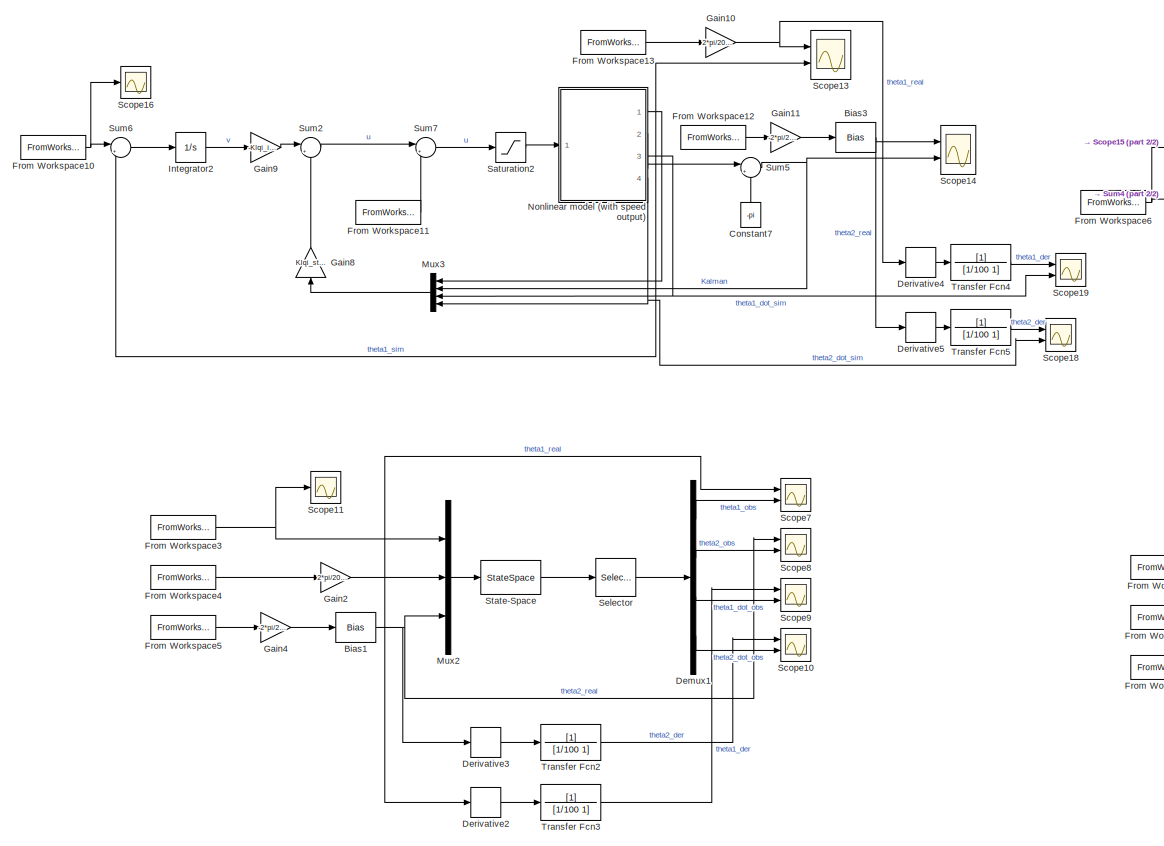
[diagram: root canvas - part 1/2, left side, full height]
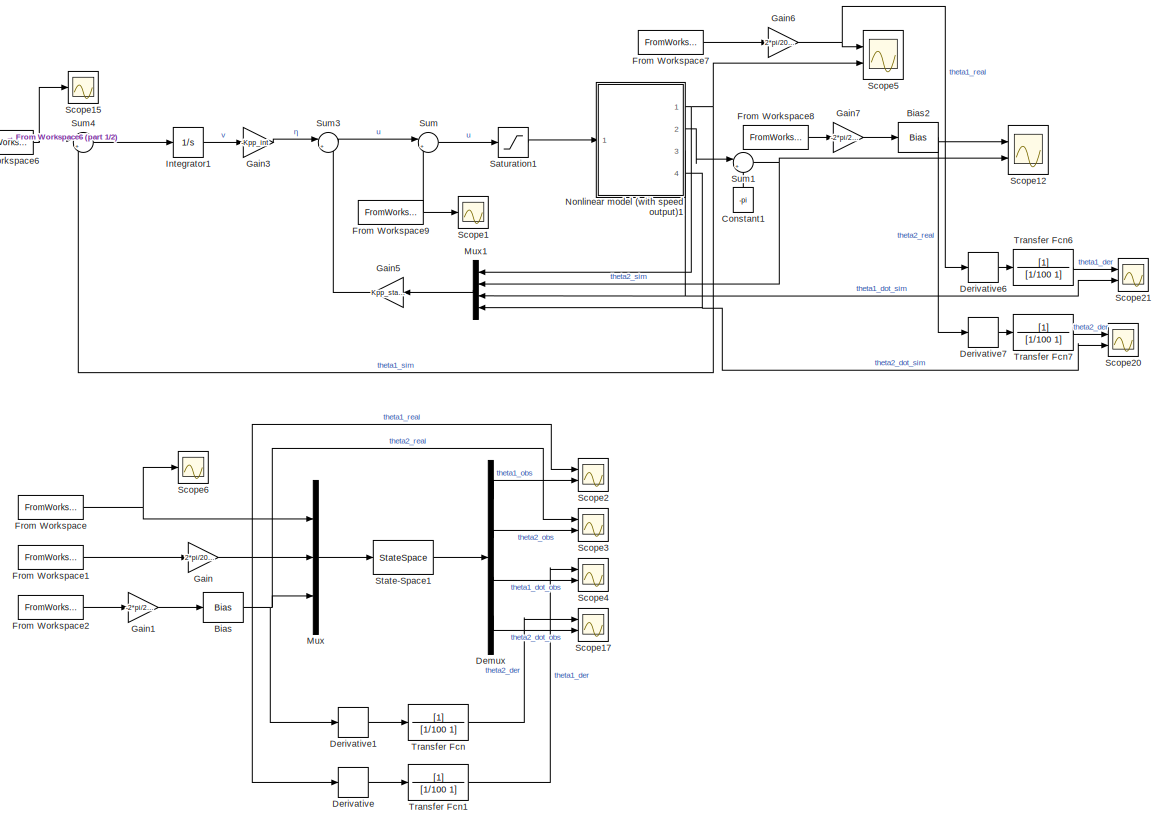
[diagram: root canvas - part 2/2, right side, full height]
MODEL slx_869bdf764063
KIND model
CONFIG AbsTol = auto
CONFIG EnableMultiTasking = off
CONFIG FixedStep = 0.002
CONFIG MaxStep = auto
CONFIG MinStep = auto
CONFIG RelTol = 1e-3
CONFIG SampleTimeConstraint = Unconstrained
CONFIG Solver = FixedStepAuto
CONFIG SolverName = FixedStepAuto
CONFIG StartTime = 0.0
CONFIG StopTime = 20
BLOCK [Bias] Bias
  Bias = -pi
  SaturateOnIntegerOverflow = off
BLOCK [Bias] Bias1
  Bias = -pi
  SaturateOnIntegerOverflow = off
BLOCK [Bias] Bias2
  Bias = -pi
  SaturateOnIntegerOverflow = off
BLOCK [Bias] Bias3
  Bias = -pi
  SaturateOnIntegerOverflow = off
BLOCK [Constant] Constant1
  Value = -pi
BLOCK [Constant] Constant7
  Value = -pi
BLOCK [Demux] Demux
  DisplayOption = bar
  Ports = [1, 4]
BLOCK [Demux] Demux1
  DisplayOption = bar
  Ports = [1, 4]
BLOCK [Derivative] Derivative
BLOCK [Derivative] Derivative1
BLOCK [Derivative] Derivative2
BLOCK [Derivative] Derivative3
BLOCK [Derivative] Derivative4
BLOCK [Derivative] Derivative5
BLOCK [Derivative] Derivative6
BLOCK [Derivative] Derivative7
BLOCK [FromWorkspace] From Workspace
  SampleTime = 0
  VariableName = input_PP_obs
  ZeroCross = on
BLOCK [FromWorkspace] From Workspace1
  SampleTime = 0
  VariableName = theta1_PP_obs
  ZeroCross = on
BLOCK [FromWorkspace] From Workspace10
  SampleTime = 0
  VariableName = reference_LQ_der
  ZeroCross = on
BLOCK [FromWorkspace] From Workspace11
  SampleTime = 0
  VariableName = disturbo_LQ_der
  ZeroCross = on
BLOCK [FromWorkspace] From Workspace12
  SampleTime = 0
  VariableName = theta2_LQ_der
  ZeroCross = on
BLOCK [FromWorkspace] From Workspace13
  SampleTime = 0
  VariableName = theta1_LQ_der
  ZeroCross = on
BLOCK [FromWorkspace] From Workspace2
  SampleTime = 0
  VariableName = theta2_PP_obs
  ZeroCross = on
BLOCK [FromWorkspace] From Workspace3
  SampleTime = 0
  VariableName = input_LQ_kal
  ZeroCross = on
BLOCK [FromWorkspace] From Workspace4
  SampleTime = 0
  VariableName = theta1_LQ_kal
  ZeroCross = on
BLOCK [FromWorkspace] From Workspace5
  SampleTime = 0
  VariableName = theta2_LQ_kal
  ZeroCross = on
BLOCK [FromWorkspace] From Workspace6
  SampleTime = 0
  VariableName = reference_PP_der
  ZeroCross = on
BLOCK [FromWorkspace] From Workspace7
  SampleTime = 0
  VariableName = theta1_PP_der
  ZeroCross = on
BLOCK [FromWorkspace] From Workspace8
  SampleTime = 0
  VariableName = theta2_PP_der
  ZeroCross = on
BLOCK [FromWorkspace] From Workspace9
  SampleTime = 0
  VariableName = disturbo_PP_der
  ZeroCross = on
BLOCK [Gain] Gain
  Gain = 2*pi/2048
  OutDataTypeStr = Inherit: Inherit via internal rule
  ParamDataTypeStr = Inherit: Inherit via internal rule
  SaturateOnIntegerOverflow = off
BLOCK [Gain] Gain1
  Gain = -2*pi/2048
  OutDataTypeStr = Inherit: Inherit via internal rule
  ParamDataTypeStr = Inherit: Inherit via internal rule
  SaturateOnIntegerOverflow = off
BLOCK [Gain] Gain10
  Gain = 2*pi/2048
  OutDataTypeStr = Inherit: Inherit via internal rule
  ParamDataTypeStr = Inherit: Inherit via internal rule
  SaturateOnIntegerOverflow = off
BLOCK [Gain] Gain11
  Gain = -2*pi/2048
  OutDataTypeStr = Inherit: Inherit via internal rule
  ParamDataTypeStr = Inherit: Inherit via internal rule
  SaturateOnIntegerOverflow = off
BLOCK [Gain] Gain2
  Gain = 2*pi/2048
  OutDataTypeStr = Inherit: Inherit via internal rule
  ParamDataTypeStr = Inherit: Inherit via internal rule
  SaturateOnIntegerOverflow = off
BLOCK [Gain] Gain3
  Gain = -Kpp_int
  Multiplication = Matrix(K*u)
  OutDataTypeStr = Inherit: Inherit via internal rule
  ParamDataTypeStr = Inherit: Inherit via internal rule
  SaturateOnIntegerOverflow = off
BLOCK [Gain] Gain4
  Gain = -2*pi/2048
  OutDataTypeStr = Inherit: Inherit via internal rule
  ParamDataTypeStr = Inherit: Inherit via internal rule
  SaturateOnIntegerOverflow = off
BLOCK [Gain] Gain5
  Gain = Kpp_state
  Multiplication = Matrix(K*u)
  OutDataTypeStr = Inherit: Inherit via internal rule
  ParamDataTypeStr = Inherit: Inherit via internal rule
  SaturateOnIntegerOverflow = off
BLOCK [Gain] Gain6
  Gain = 2*pi/2048
  OutDataTypeStr = Inherit: Inherit via internal rule
  ParamDataTypeStr = Inherit: Inherit via internal rule
  SaturateOnIntegerOverflow = off
BLOCK [Gain] Gain7
  Gain = -2*pi/2048
  OutDataTypeStr = Inherit: Inherit via internal rule
  ParamDataTypeStr = Inherit: Inherit via internal rule
  SaturateOnIntegerOverflow = off
BLOCK [Gain] Gain8
  Gain = Klqi_state
  Multiplication = Matrix(K*u)
  OutDataTypeStr = Inherit: Inherit via internal rule
  ParamDataTypeStr = Inherit: Inherit via internal rule
  SaturateOnIntegerOverflow = off
BLOCK [Gain] Gain9
  Gain = -Klqi_int
  Multiplication = Matrix(K*u)
  OutDataTypeStr = Inherit: Inherit via internal rule
  ParamDataTypeStr = Inherit: Inherit via internal rule
  SaturateOnIntegerOverflow = off
BLOCK [Integrator] Integrator1
  Ports = [1, 1]
BLOCK [Integrator] Integrator2
  Ports = [1, 1]
BLOCK [Mux] Mux
  DisplayOption = bar
  Inputs = 3
  Ports = [3, 1]
BLOCK [Mux] Mux1
  DisplayOption = bar
  Ports = [4, 1]
BLOCK [Mux] Mux2
  DisplayOption = bar
  Inputs = 3
  Ports = [3, 1]
BLOCK [Mux] Mux3
  DisplayOption = bar
  Ports = [4, 1]
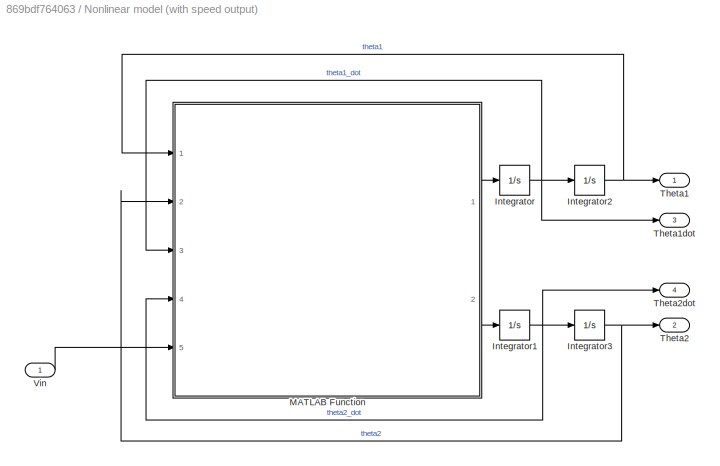
BLOCK [SubSystem] Nonlinear model (with speed output)
  Ports = [1, 4]
  RequestExecContextInheritance = off
BLOCK [Integrator] Nonlinear model (with speed output)/Integrator
  Ports = [1, 1]
BLOCK [Integrator] Nonlinear model (with speed output)/Integrator1
  Ports = [1, 1]
BLOCK [Integrator] Nonlinear model (with speed output)/Integrator2
  Ports = [1, 1]
BLOCK [Integrator] Nonlinear model (with speed output)/Integrator3
  InitialCondition = pi
  Ports = [1, 1]
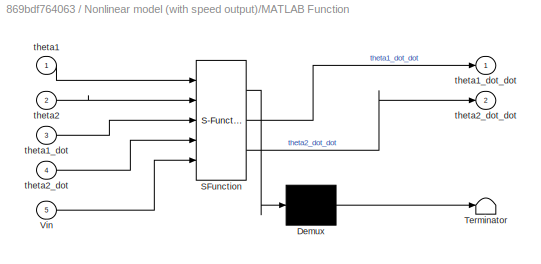
BLOCK [SubSystem] Nonlinear model (with speed output)/MATLAB Function
  ErrorFcn = Stateflow.Translate.translate
  PermitHierarchicalResolution = ExplicitOnly
  Ports = [5, 2]
  RequestExecContextInheritance = off
  SFBlockType = MATLAB Function
  TreatAsAtomicUnit = on
BLOCK [Demux] Nonlinear model (with speed output)/MATLAB Function/ Demux 
  DisplayOption = bar
  Outputs = 1
  Ports = [1, 1]
BLOCK [S-Function] Nonlinear model (with speed output)/MATLAB Function/ SFunction 
  EnableBusSupport = on
  FunctionName = sf_sfun
  Parameters = Pars
  PortCounts = [5 3]
  Ports = [5, 3]
  SFcnIsStateOwnerBlock = off
  SFunctionDeploymentMode = off
  Tag = Stateflow S-Function 1
BLOCK [Terminator] Nonlinear model (with speed output)/MATLAB Function/ Terminator 
BLOCK [Inport] Nonlinear model (with speed output)/MATLAB Function/Vin
  IconDisplay = Port number
  Port = 5
BLOCK [Inport] Nonlinear model (with speed output)/MATLAB Function/theta1
  IconDisplay = Port number
BLOCK [Inport] Nonlinear model (with speed output)/MATLAB Function/theta1_dot
  IconDisplay = Port number
  Port = 3
BLOCK [Outport] Nonlinear model (with speed output)/MATLAB Function/theta1_dot_dot
  IconDisplay = Port number
BLOCK [Inport] Nonlinear model (with speed output)/MATLAB Function/theta2
  IconDisplay = Port number
  Port = 2
BLOCK [Inport] Nonlinear model (with speed output)/MATLAB Function/theta2_dot
  IconDisplay = Port number
  Port = 4
BLOCK [Outport] Nonlinear model (with speed output)/MATLAB Function/theta2_dot_dot
  IconDisplay = Port number
  Port = 2
BLOCK [Outport] Nonlinear model (with speed output)/Theta1
  IconDisplay = Port number
BLOCK [Outport] Nonlinear model (with speed output)/Theta1dot
  IconDisplay = Port number
  Port = 3
BLOCK [Outport] Nonlinear model (with speed output)/Theta2
  IconDisplay = Port number
  Port = 2
BLOCK [Outport] Nonlinear model (with speed output)/Theta2dot
  IconDisplay = Port number
  Port = 4
BLOCK [Inport] Nonlinear model (with speed output)/Vin
  IconDisplay = Port number
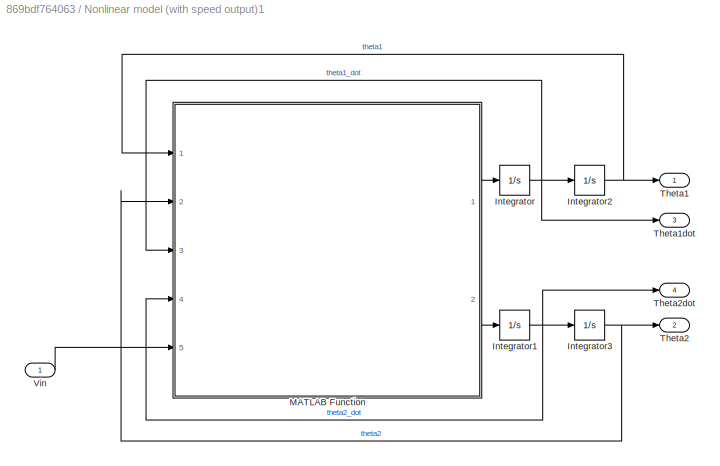
BLOCK [SubSystem] Nonlinear model (with speed output)1
  Ports = [1, 4]
  RequestExecContextInheritance = off
BLOCK [Integrator] Nonlinear model (with speed output)1/Integrator
  Ports = [1, 1]
BLOCK [Integrator] Nonlinear model (with speed output)1/Integrator1
  Ports = [1, 1]
BLOCK [Integrator] Nonlinear model (with speed output)1/Integrator2
  InitialCondition = 0.1
  Ports = [1, 1]
BLOCK [Integrator] Nonlinear model (with speed output)1/Integrator3
  InitialCondition = pi+0.04
  Ports = [1, 1]
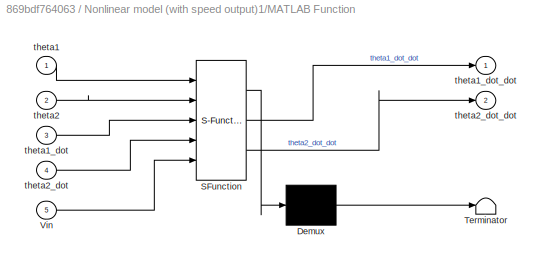
BLOCK [SubSystem] Nonlinear model (with speed output)1/MATLAB Function
  ErrorFcn = Stateflow.Translate.translate
  PermitHierarchicalResolution = ExplicitOnly
  Ports = [5, 2]
  RequestExecContextInheritance = off
  SFBlockType = MATLAB Function
  TreatAsAtomicUnit = on
BLOCK [Demux] Nonlinear model (with speed output)1/MATLAB Function/ Demux 
  DisplayOption = bar
  Outputs = 1
  Ports = [1, 1]
BLOCK [S-Function] Nonlinear model (with speed output)1/MATLAB Function/ SFunction 
  EnableBusSupport = on
  FunctionName = sf_sfun
  Parameters = Pars
  PortCounts = [5 3]
  Ports = [5, 3]
  SFcnIsStateOwnerBlock = off
  SFunctionDeploymentMode = off
  Tag = Stateflow S-Function 2
BLOCK [Terminator] Nonlinear model (with speed output)1/MATLAB Function/ Terminator 
BLOCK [Inport] Nonlinear model (with speed output)1/MATLAB Function/Vin
  IconDisplay = Port number
  Port = 5
BLOCK [Inport] Nonlinear model (with speed output)1/MATLAB Function/theta1
  IconDisplay = Port number
BLOCK [Inport] Nonlinear model (with speed output)1/MATLAB Function/theta1_dot
  IconDisplay = Port number
  Port = 3
BLOCK [Outport] Nonlinear model (with speed output)1/MATLAB Function/theta1_dot_dot
  IconDisplay = Port number
BLOCK [Inport] Nonlinear model (with speed output)1/MATLAB Function/theta2
  IconDisplay = Port number
  Port = 2
BLOCK [Inport] Nonlinear model (with speed output)1/MATLAB Function/theta2_dot
  IconDisplay = Port number
  Port = 4
BLOCK [Outport] Nonlinear model (with speed output)1/MATLAB Function/theta2_dot_dot
  IconDisplay = Port number
  Port = 2
BLOCK [Outport] Nonlinear model (with speed output)1/Theta1
  IconDisplay = Port number
BLOCK [Outport] Nonlinear model (with speed output)1/Theta1dot
  IconDisplay = Port number
  Port = 3
BLOCK [Outport] Nonlinear model (with speed output)1/Theta2
  IconDisplay = Port number
  Port = 2
BLOCK [Outport] Nonlinear model (with speed output)1/Theta2dot
  IconDisplay = Port number
  Port = 4
BLOCK [Inport] Nonlinear model (with speed output)1/Vin
  IconDisplay = Port number
BLOCK [Saturate] Saturation1
  InputPortMap = u0
  LowerLimit = -10
  Ports = [1, 1]
  UpperLimit = 10
BLOCK [Saturate] Saturation2
  InputPortMap = u0
  LowerLimit = -10
  Ports = [1, 1]
  UpperLimit = 10
BLOCK [Scope] Scope1
  Floating = off
  NumInputPorts = 1
  Ports = [1]
  ScopeSpecificationString = Simulink.scopes.TimeScopeBlockCfg('CurrentConfiguration', extmgr.ConfigurationSet(extmgr.Configuration('Core','General UI',true),extmgr.Configuration('Core','Source UI',true),extmgr.Configuration('Sources','WiredSimulink',true,'DataLoggingVariableName','ScopeData7'),extmgr.Configuration('Visuals','Time Domain',true,'SerializedDisplays',{struct('MinYLimReal','-0.01509','MaxYLimReal','0.01501','YLab...<+1393ch>
BLOCK [Scope] Scope10
  Floating = off
  NumInputPorts = 2
  Ports = [2]
  ScopeSpecificationString = Simulink.scopes.TimeScopeBlockCfg('CurrentConfiguration', extmgr.ConfigurationSet(extmgr.Configuration('Core','General UI',true,'FigureColor',[1 1 1]),extmgr.Configuration('Core','Source UI',true),extmgr.Configuration('Sources','WiredSimulink',true,'DataLoggingVariableName','ScopeData11'),extmgr.Configuration('Visuals','Time Domain',true,'SerializedDisplays',{struct('MinYLimReal','-2.59472','MaxYL...<+1721ch>
BLOCK [Scope] Scope11
  Floating = off
  NumInputPorts = 1
  Ports = [1]
  ScopeSpecificationString = Simulink.scopes.TimeScopeBlockCfg('CurrentConfiguration', extmgr.ConfigurationSet(extmgr.Configuration('Core','General UI',true),extmgr.Configuration('Core','Source UI',true),extmgr.Configuration('Sources','WiredSimulink',true,'DataLoggingVariableName','ScopeData2'),extmgr.Configuration('Visuals','Time Domain',true,'SerializedDisplays',{struct('MinYLimReal','-0.38589','MaxYLimReal','0.26507','YLab...<+1392ch>
BLOCK [Scope] Scope12
  Floating = off
  NumInputPorts = 2
  Ports = [2]
  ScopeSpecificationString = Simulink.scopes.TimeScopeBlockCfg('CurrentConfiguration', extmgr.ConfigurationSet(extmgr.Configuration('Core','General UI',true,'FigureColor',[1 1 1]),extmgr.Configuration('Core','Source UI',true),extmgr.Configuration('Sources','WiredSimulink',true,'DataLoggingVariableName','ScopeData6'),extmgr.Configuration('Visuals','Time Domain',true,'SerializedDisplays',{struct('MinYLimReal','-0.08584','MaxYLi...<+1719ch>
BLOCK [Scope] Scope13
  Floating = off
  NumInputPorts = 2
  Ports = [2]
  ScopeSpecificationString = Simulink.scopes.TimeScopeBlockCfg('CurrentConfiguration', extmgr.ConfigurationSet(extmgr.Configuration('Core','General UI',true,'FigureColor',[1 1 1]),extmgr.Configuration('Core','Source UI',true),extmgr.Configuration('Sources','WiredSimulink',true,'DataLoggingVariableName','ScopeData4'),extmgr.Configuration('Visuals','Time Domain',true,'SerializedDisplays',{struct('MinYLimReal','-0.18957','MaxYLi...<+1719ch>
BLOCK [Scope] Scope14
  Floating = off
  NumInputPorts = 2
  Ports = [2]
  ScopeSpecificationString = Simulink.scopes.TimeScopeBlockCfg('CurrentConfiguration', extmgr.ConfigurationSet(extmgr.Configuration('Core','General UI',true,'FigureColor',[1 1 1]),extmgr.Configuration('Core','Source UI',true),extmgr.Configuration('Sources','WiredSimulink',true,'DataLoggingVariableName','ScopeData2'),extmgr.Configuration('Visuals','Time Domain',true,'SerializedDisplays',{struct('MinYLimReal','-0.08434','MaxYLi...<+1715ch>
BLOCK [Scope] Scope15
  Floating = off
  NumInputPorts = 1
  Ports = [1]
  ScopeSpecificationString = Simulink.scopes.TimeScopeBlockCfg('CurrentConfiguration', extmgr.ConfigurationSet(extmgr.Configuration('Core','General UI',true),extmgr.Configuration('Core','Source UI',true),extmgr.Configuration('Sources','WiredSimulink',true,'DataLoggingVariableName','ScopeData10'),extmgr.Configuration('Visuals','Time Domain',true,'SerializedDisplays',{struct('MinYLimReal','-0.0668','MaxYLimReal','0.21138','YLab...<+1392ch>
BLOCK [Scope] Scope16
  Floating = off
  NumInputPorts = 1
  Ports = [1]
  ScopeSpecificationString = Simulink.scopes.TimeScopeBlockCfg('CurrentConfiguration', extmgr.ConfigurationSet(extmgr.Configuration('Core','General UI',true),extmgr.Configuration('Core','Source UI',true),extmgr.Configuration('Sources','WiredSimulink',true,'DataLoggingVariableName','ScopeData11'),extmgr.Configuration('Visuals','Time Domain',true,'SerializedDisplays',{struct('MinYLimReal','-0.07734','MaxYLimReal','0.10784','YLa...<+1395ch>
BLOCK [Scope] Scope17
  Floating = off
  NumInputPorts = 2
  Ports = [2]
  ScopeSpecificationString = Simulink.scopes.TimeScopeBlockCfg('CurrentConfiguration', extmgr.ConfigurationSet(extmgr.Configuration('Core','General UI',true,'FigureColor',[1 1 1]),extmgr.Configuration('Core','Source UI',true),extmgr.Configuration('Sources','WiredSimulink',true,'DataLoggingVariableName','ScopeData15'),extmgr.Configuration('Visuals','Time Domain',true,'SerializedDisplays',{struct('MinYLimReal','-1.1908','MaxYLi...<+1717ch>
BLOCK [Scope] Scope18
  Floating = off
  NumInputPorts = 2
  Ports = [2]
  ScopeSpecificationString = Simulink.scopes.TimeScopeBlockCfg('CurrentConfiguration', extmgr.ConfigurationSet(extmgr.Configuration('Core','General UI',true,'FigureColor',[1 1 1]),extmgr.Configuration('Core','Source UI',true),extmgr.Configuration('Sources','WiredSimulink',true,'DataLoggingVariableName','ScopeData1'),extmgr.Configuration('Visuals','Time Domain',true,'SerializedDisplays',{struct('MinYLimReal','-0.91171','MaxYLi...<+1720ch>
BLOCK [Scope] Scope19
  Floating = off
  NumInputPorts = 2
  Ports = [2]
  ScopeSpecificationString = Simulink.scopes.TimeScopeBlockCfg('CurrentConfiguration', extmgr.ConfigurationSet(extmgr.Configuration('Core','General UI',true,'FigureColor',[1 1 1]),extmgr.Configuration('Core','Source UI',true),extmgr.Configuration('Sources','WiredSimulink',true,'DataLoggingVariableName','ScopeData3'),extmgr.Configuration('Visuals','Time Domain',true,'SerializedDisplays',{struct('MinYLimReal','-0.99051','MaxYLi...<+1722ch>
BLOCK [Scope] Scope2
  Floating = off
  NumInputPorts = 2
  Ports = [2]
  ScopeSpecificationString = Simulink.scopes.TimeScopeBlockCfg('CurrentConfiguration', extmgr.ConfigurationSet(extmgr.Configuration('Core','General UI',true,'FigureColor',[1 1 1]),extmgr.Configuration('Core','Source UI',true),extmgr.Configuration('Sources','WiredSimulink',true,'DataLoggingVariableName','ScopeData12'),extmgr.Configuration('Visuals','Time Domain',true,'SerializedDisplays',{struct('MinYLimReal','-0.2042','MaxYLi...<+1714ch>
BLOCK [Scope] Scope20
  Floating = off
  NumInputPorts = 2
  Ports = [2]
  ScopeSpecificationString = Simulink.scopes.TimeScopeBlockCfg('CurrentConfiguration', extmgr.ConfigurationSet(extmgr.Configuration('Core','General UI',true,'FigureColor',[1 1 1]),extmgr.Configuration('Core','Source UI',true),extmgr.Configuration('Sources','WiredSimulink',true,'DataLoggingVariableName','ScopeData7'),extmgr.Configuration('Visuals','Time Domain',true,'SerializedDisplays',{struct('MinYLimReal','-0.94177','MaxYLi...<+1722ch>
BLOCK [Scope] Scope21
  Floating = off
  NumInputPorts = 2
  Ports = [2]
  ScopeSpecificationString = Simulink.scopes.TimeScopeBlockCfg('CurrentConfiguration', extmgr.ConfigurationSet(extmgr.Configuration('Core','General UI',true,'FigureColor',[1 1 1]),extmgr.Configuration('Core','Source UI',true),extmgr.Configuration('Sources','WiredSimulink',true,'DataLoggingVariableName','ScopeData8'),extmgr.Configuration('Visuals','Time Domain',true,'SerializedDisplays',{struct('MinYLimReal','-1.46208','MaxYLi...<+1722ch>
BLOCK [Scope] Scope3
  Floating = off
  NumInputPorts = 2
  Ports = [2]
  ScopeSpecificationString = Simulink.scopes.TimeScopeBlockCfg('CurrentConfiguration', extmgr.ConfigurationSet(extmgr.Configuration('Core','General UI',true,'FigureColor',[1 1 1]),extmgr.Configuration('Core','Source UI',true),extmgr.Configuration('Sources','WiredSimulink',true,'DataLoggingVariableName','ScopeData13'),extmgr.Configuration('Visuals','Time Domain',true,'SerializedDisplays',{struct('MinYLimReal','-0.0778','MaxYLi...<+1712ch>
BLOCK [Scope] Scope4
  Floating = off
  NumInputPorts = 2
  Ports = [2]
  ScopeSpecificationString = Simulink.scopes.TimeScopeBlockCfg('CurrentConfiguration', extmgr.ConfigurationSet(extmgr.Configuration('Core','General UI',true,'FigureColor',[1 1 1]),extmgr.Configuration('Core','Source UI',true),extmgr.Configuration('Sources','WiredSimulink',true,'DataLoggingVariableName','ScopeData14'),extmgr.Configuration('Visuals','Time Domain',true,'SerializedDisplays',{struct('MinYLimReal','-1.68693','MaxYL...<+1721ch>
BLOCK [Scope] Scope5
  Floating = off
  NumInputPorts = 2
  Ports = [2]
  ScopeSpecificationString = Simulink.scopes.TimeScopeBlockCfg('CurrentConfiguration', extmgr.ConfigurationSet(extmgr.Configuration('Core','General UI',true,'FigureColor',[1 1 1]),extmgr.Configuration('Core','Source UI',true),extmgr.Configuration('Sources','WiredSimulink',true,'DataLoggingVariableName','ScopeData5'),extmgr.Configuration('Visuals','Time Domain',true,'SerializedDisplays',{struct('MinYLimReal','-0.27688','MaxYLi...<+1719ch>
BLOCK [Scope] Scope6
  Floating = off
  NumInputPorts = 1
  Ports = [1]
  ScopeSpecificationString = Simulink.scopes.TimeScopeBlockCfg('CurrentConfiguration', extmgr.ConfigurationSet(extmgr.Configuration('Core','General UI',true),extmgr.Configuration('Core','Source UI',true),extmgr.Configuration('Sources','WiredSimulink',true,'DataLoggingVariableName','ScopeData6'),extmgr.Configuration('Visuals','Time Domain',true,'SerializedDisplays',{struct('MinYLimReal','-0.38589','MaxYLimReal','0.26507','YLab...<+1392ch>
BLOCK [Scope] Scope7
  Floating = off
  NumInputPorts = 2
  Ports = [2]
  ScopeSpecificationString = Simulink.scopes.TimeScopeBlockCfg('CurrentConfiguration', extmgr.ConfigurationSet(extmgr.Configuration('Core','General UI',true,'FigureColor',[1 1 1]),extmgr.Configuration('Core','Source UI',true),extmgr.Configuration('Sources','WiredSimulink',true,'DataLoggingVariableName','ScopeData2'),extmgr.Configuration('Visuals','Time Domain',true,'SerializedDisplays',{struct('MinYLimReal','-0.29032','MaxYLi...<+1717ch>
BLOCK [Scope] Scope8
  Floating = off
  NumInputPorts = 2
  Ports = [2]
  ScopeSpecificationString = Simulink.scopes.TimeScopeBlockCfg('CurrentConfiguration', extmgr.ConfigurationSet(extmgr.Configuration('Core','General UI',true,'FigureColor',[1 1 1]),extmgr.Configuration('Core','Source UI',true),extmgr.Configuration('Sources','WiredSimulink',true,'DataLoggingVariableName','ScopeData9'),extmgr.Configuration('Visuals','Time Domain',true,'SerializedDisplays',{struct('MinYLimReal','-0.12432','MaxYLi...<+1719ch>
BLOCK [Scope] Scope9
  Floating = off
  NumInputPorts = 2
  Ports = [2]
  ScopeSpecificationString = Simulink.scopes.TimeScopeBlockCfg('CurrentConfiguration', extmgr.ConfigurationSet(extmgr.Configuration('Core','General UI',true,'FigureColor',[1 1 1]),extmgr.Configuration('Core','Source UI',true),extmgr.Configuration('Sources','WiredSimulink',true,'DataLoggingVariableName','ScopeData10'),extmgr.Configuration('Visuals','Time Domain',true,'SerializedDisplays',{struct('MinYLimReal','-2.85725','MaxYL...<+1721ch>
BLOCK [Selector] Selector
  IndexOptions = Index vector (dialog)
  Indices = [3,4,5,6]
  InputPortWidth = 6
  OutputSizes = 1
  Ports = [1, 1]
BLOCK [StateSpace] State-Space
  A = kalmf.A
  B = kalmf.B
  C = kalmf.C
  D = kalmf.D
  InitialCondition = [0,0,0,0]
  Ports = [1, 1]
BLOCK [StateSpace] State-Space1
  A = Ao
  B = Bo
  C = Co
  D = zeros(4,3)
  InitialCondition = [0,0,0,0]
  Ports = [1, 1]
BLOCK [Sum] Sum
  IconShape = round
  InputSameDT = off
  Inputs = |++
  OutDataTypeStr = Inherit: Inherit via internal rule
  Ports = [2, 1]
  SaturateOnIntegerOverflow = off
BLOCK [Sum] Sum1
  IconShape = round
  InputSameDT = off
  Inputs = |++
  OutDataTypeStr = Inherit: Inherit via internal rule
  Ports = [2, 1]
  SaturateOnIntegerOverflow = off
BLOCK [Sum] Sum2
  IconShape = round
  InputSameDT = off
  Inputs = |+-
  OutDataTypeStr = Inherit: Inherit via internal rule
  Ports = [2, 1]
  SaturateOnIntegerOverflow = off
BLOCK [Sum] Sum3
  IconShape = round
  InputSameDT = off
  Inputs = |+-
  OutDataTypeStr = Inherit: Inherit via internal rule
  Ports = [2, 1]
  SaturateOnIntegerOverflow = off
BLOCK [Sum] Sum4
  IconShape = round
  InputSameDT = off
  Inputs = |+-
  OutDataTypeStr = Inherit: Inherit via internal rule
  Ports = [2, 1]
  SaturateOnIntegerOverflow = off
BLOCK [Sum] Sum5
  IconShape = round
  InputSameDT = off
  Inputs = |++
  OutDataTypeStr = Inherit: Inherit via internal rule
  Ports = [2, 1]
  SaturateOnIntegerOverflow = off
BLOCK [Sum] Sum6
  IconShape = round
  InputSameDT = off
  Inputs = |+-
  OutDataTypeStr = Inherit: Inherit via internal rule
  Ports = [2, 1]
  SaturateOnIntegerOverflow = off
BLOCK [Sum] Sum7
  IconShape = round
  InputSameDT = off
  Inputs = |++
  OutDataTypeStr = Inherit: Inherit via internal rule
  Ports = [2, 1]
  SaturateOnIntegerOverflow = off
BLOCK [TransferFcn] Transfer Fcn
  Denominator = [1/100 1]
BLOCK [TransferFcn] Transfer Fcn1
  Denominator = [1/100 1]
BLOCK [TransferFcn] Transfer Fcn2
  Denominator = [1/100 1]
BLOCK [TransferFcn] Transfer Fcn3
  Denominator = [1/100 1]
BLOCK [TransferFcn] Transfer Fcn4
  Denominator = [1/100 1]
BLOCK [TransferFcn] Transfer Fcn5
  Denominator = [1/100 1]
BLOCK [TransferFcn] Transfer Fcn6
  Denominator = [1/100 1]
BLOCK [TransferFcn] Transfer Fcn7
  Denominator = [1/100 1]
NET Bias1:1 -> Derivative3:1, Mux2:3, Scope8:1
NET Bias2:1 -> Derivative7:1, Scope12:1
NET Bias3:1 -> Derivative5:1, Scope14:1
NET Bias:1 -> Derivative1:1, Mux:3, Scope3:1
LINE Constant1:1 -> Sum1:2
LINE Constant7:1 -> Sum5:2
LINE Demux1:1 -> Scope7:2
LINE Demux1:2 -> Scope8:2
LINE Demux1:3 -> Scope9:2
LINE Demux1:4 -> Scope10:2
LINE Demux:1 -> Scope2:2
LINE Demux:2 -> Scope3:2
LINE Demux:3 -> Scope4:2
LINE Demux:4 -> Scope17:2
LINE Derivative1:1 -> Transfer Fcn:1
LINE Derivative2:1 -> Transfer Fcn3:1
LINE Derivative3:1 -> Transfer Fcn2:1
LINE Derivative4:1 -> Transfer Fcn4:1
LINE Derivative5:1 -> Transfer Fcn5:1
LINE Derivative6:1 -> Transfer Fcn6:1
LINE Derivative7:1 -> Transfer Fcn7:1
LINE Derivative:1 -> Transfer Fcn1:1
NET From Workspace10:1 -> Scope16:1, Sum6:1
LINE From Workspace11:1 -> Sum7:2
LINE From Workspace12:1 -> Gain11:1
LINE From Workspace13:1 -> Gain10:1
LINE From Workspace1:1 -> Gain:1
LINE From Workspace2:1 -> Gain1:1
NET From Workspace3:1 -> Mux2:1, Scope11:1
LINE From Workspace4:1 -> Gain2:1
LINE From Workspace5:1 -> Gain4:1
NET From Workspace6:1 -> Scope15:1, Sum4:1
LINE From Workspace7:1 -> Gain6:1
LINE From Workspace8:1 -> Gain7:1
NET From Workspace9:1 -> Scope1:1, Sum:2
NET From Workspace:1 -> Mux:1, Scope6:1
NET Gain10:1 -> Derivative4:1, Scope13:1
LINE Gain11:1 -> Bias3:1
LINE Gain1:1 -> Bias:1
NET Gain2:1 -> Derivative2:1, Mux2:2, Scope7:1
LINE Gain3:1 -> Sum3:1
LINE Gain4:1 -> Bias1:1
LINE Gain5:1 -> Sum3:2
NET Gain6:1 -> Derivative6:1, Scope5:1
LINE Gain7:1 -> Bias2:1
LINE Gain8:1 -> Sum2:2
LINE Gain9:1 -> Sum2:1
NET Gain:1 -> Derivative:1, Mux:2, Scope2:1
LINE Integrator1:1 -> Gain3:1
LINE Integrator2:1 -> Gain9:1
LINE Mux1:1 -> Gain5:1
LINE Mux2:1 -> State-Space:1
LINE Mux3:1 -> Gain8:1
LINE Mux:1 -> State-Space1:1
NET Nonlinear model (with speed output)/Integrator1:1 -> Nonlinear model (with speed output)/Integrator3:1, Nonlinear model (with speed output)/MATLAB Function:4, Nonlinear model (with speed output)/Theta2dot:1
NET Nonlinear model (with speed output)/Integrator2:1 -> Nonlinear model (with speed output)/MATLAB Function:1, Nonlinear model (with speed output)/Theta1:1
NET Nonlinear model (with speed output)/Integrator3:1 -> Nonlinear model (with speed output)/MATLAB Function:2, Nonlinear model (with speed output)/Theta2:1
NET Nonlinear model (with speed output)/Integrator:1 -> Nonlinear model (with speed output)/Integrator2:1, Nonlinear model (with speed output)/MATLAB Function:3, Nonlinear model (with speed output)/Theta1dot:1
LINE Nonlinear model (with speed output)/MATLAB Function:1 -> Nonlinear model (with speed output)/Integrator:1
LINE Nonlinear model (with speed output)/MATLAB Function:2 -> Nonlinear model (with speed output)/Integrator1:1
LINE Nonlinear model (with speed output)/Vin:1 -> Nonlinear model (with speed output)/MATLAB Function:5
NET Nonlinear model (with speed output)1/Integrator1:1 -> Nonlinear model (with speed output)1/Integrator3:1, Nonlinear model (with speed output)1/MATLAB Function:4, Nonlinear model (with speed output)1/Theta2dot:1
NET Nonlinear model (with speed output)1/Integrator2:1 -> Nonlinear model (with speed output)1/MATLAB Function:1, Nonlinear model (with speed output)1/Theta1:1
NET Nonlinear model (with speed output)1/Integrator3:1 -> Nonlinear model (with speed output)1/MATLAB Function:2, Nonlinear model (with speed output)1/Theta2:1
NET Nonlinear model (with speed output)1/Integrator:1 -> Nonlinear model (with speed output)1/Integrator2:1, Nonlinear model (with speed output)1/MATLAB Function:3, Nonlinear model (with speed output)1/Theta1dot:1
LINE Nonlinear model (with speed output)1/MATLAB Function:1 -> Nonlinear model (with speed output)1/Integrator:1
LINE Nonlinear model (with speed output)1/MATLAB Function:2 -> Nonlinear model (with speed output)1/Integrator1:1
LINE Nonlinear model (with speed output)1/Vin:1 -> Nonlinear model (with speed output)1/MATLAB Function:5
NET Nonlinear model (with speed output)1:1 -> Mux1:1, Scope5:2, Sum4:2
LINE Nonlinear model (with speed output)1:2 -> Sum1:1
NET Nonlinear model (with speed output)1:3 -> Mux1:3, Scope21:2
NET Nonlinear model (with speed output)1:4 -> Mux1:4, Scope20:2
NET Nonlinear model (with speed output):1 -> Mux3:1, Scope13:2, Sum6:2
LINE Nonlinear model (with speed output):2 -> Sum5:1
NET Nonlinear model (with speed output):3 -> Mux3:3, Scope19:2
NET Nonlinear model (with speed output):4 -> Mux3:4, Scope18:2
LINE Saturation1:1 -> Nonlinear model (with speed output)1:1
LINE Saturation2:1 -> Nonlinear model (with speed output):1
LINE Selector:1 -> Demux1:1
LINE State-Space1:1 -> Demux:1
LINE State-Space:1 -> Selector:1
NET Sum1:1 -> Mux1:2, Scope12:2
LINE Sum2:1 -> Sum7:1
LINE Sum3:1 -> Sum:1
LINE Sum4:1 -> Integrator1:1
NET Sum5:1 -> Mux3:2, Scope14:2
LINE Sum6:1 -> Integrator2:1
LINE Sum7:1 -> Saturation2:1
LINE Sum:1 -> Saturation1:1
LINE Transfer Fcn1:1 -> Scope4:1
LINE Transfer Fcn2:1 -> Scope10:1
LINE Transfer Fcn3:1 -> Scope9:1
LINE Transfer Fcn4:1 -> Scope19:1
LINE Transfer Fcn5:1 -> Scope18:1
LINE Transfer Fcn6:1 -> Scope21:1
LINE Transfer Fcn7:1 -> Scope20:1
LINE Transfer Fcn:1 -> Scope17:1
note: NET lines group one-source signal fan-out (src -> all destinations, sorted); 1:1 wires keep LINE
CHART Nonlinear model
(with speed output)/MATLAB Function states=1 transitions=1
  STATE_LABEL 'eML_blk_kernel()'
  STATE_LABEL 'SCRIPT:\nfunction [theta1_dot_dot,theta2_dot_dot] = fcn(theta1, theta2, theta1_dot, theta2_dot,Vin, Pars)\n\n   k1 = Pars.Jeq + Pars.m2*(Pars.l1^2 + Pars.x2^2*sin(theta2)^2);\n   k2 = Pars.m2*Pars.l1*Pars.x2*cos(theta2);\n   k3 = 2*Pars.m2*Pars.x2^2*sin(theta2)*cos(theta2)*theta1_dot*theta2_dot - Pars.m2*Pars.l1*Pars.x2*sin(theta2)*theta2_dot^2 +Pars.Ks*theta1 - Pars.Km/Pars.Rm*Vin + (Pars.Km^2)/Pars.R...<+346ch>'
CHART Nonlinear model
(with speed output)1/MATLAB Function states=1 transitions=1
  STATE_LABEL 'eML_blk_kernel()'
  STATE_LABEL 'SCRIPT:\nfunction [theta1_dot_dot,theta2_dot_dot] = fcn(theta1, theta2, theta1_dot, theta2_dot,Vin, Pars)\n\n   k1 = Pars.Jeq + Pars.m2*(Pars.l1^2 + Pars.x2^2*sin(theta2)^2);\n   k2 = Pars.m2*Pars.l1*Pars.x2*cos(theta2);\n   k3 = 2*Pars.m2*Pars.x2^2*sin(theta2)*cos(theta2)*theta1_dot*theta2_dot - Pars.m2*Pars.l1*Pars.x2*sin(theta2)*theta2_dot^2 +Pars.Ks*theta1 - Pars.Km/Pars.Rm*Vin + (Pars.Km^2)/Pars.R...<+346ch>'
